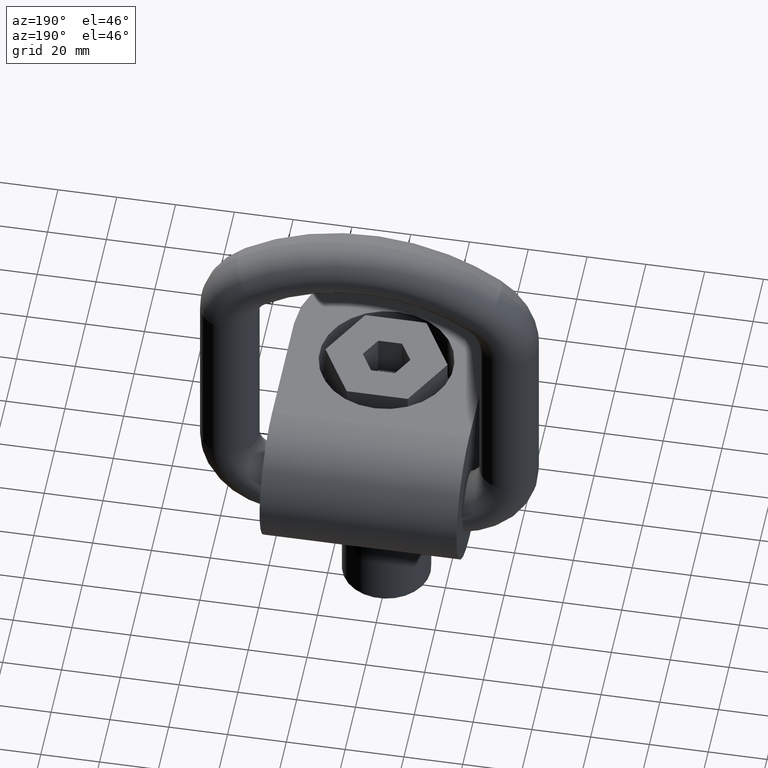
[diagram: clean part render]
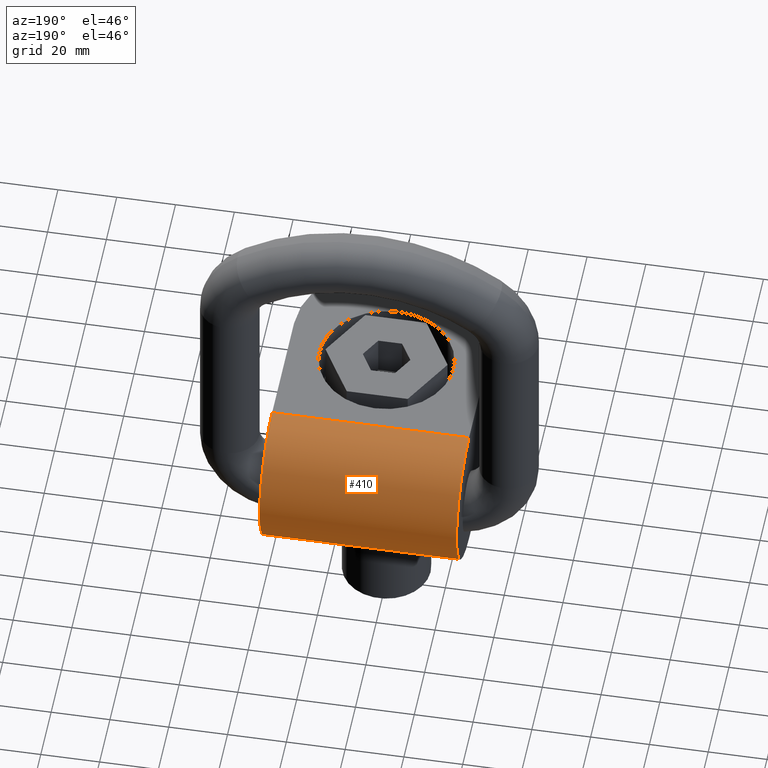
[diagram: same view with one face highlighted and labeled with its STEP entity id]
A machine part, auxiliary view. The second image highlights one B-rep face of the part: STEP entity #410.
In plain terms, the highlighted cylindrical surface (partial cylindrical patch) has radius 24.25 mm, axis along (-1, 0, 0).
Its self-contained STEP definition (entity closure, byte-faithful):
#301=FACE_OUTER_BOUND('',#639,.T.);
#410=ADVANCED_FACE('',(#301),#538,.T.);
#538=CYLINDRICAL_SURFACE('',#2495,24.25);
#639=EDGE_LOOP('',(#1221,#1222,#1223,#1224,#1225,#1226));
#796=LINE('',#3811,#926);
#799=LINE('',#3820,#929);
#802=LINE('',#3826,#932);
#804=LINE('',#3834,#934);
#926=VECTOR('',#2666,1.);
#929=VECTOR('',#2677,1.);
#932=VECTOR('',#2682,1.);
#934=VECTOR('',#2692,1.);
#1115=CIRCLE('',#2493,24.25);
#1116=CIRCLE('',#2494,24.25);
#1221=ORIENTED_EDGE('',*,*,#2054,.T.);
#1222=ORIENTED_EDGE('',*,*,#2051,.F.);
#1223=ORIENTED_EDGE('',*,*,#2055,.F.);
#1224=ORIENTED_EDGE('',*,*,#2048,.T.);
#1225=ORIENTED_EDGE('',*,*,#2056,.T.);
#1226=ORIENTED_EDGE('',*,*,#2043,.T.);
#1829=VERTEX_POINT('',#3808);
#1830=VERTEX_POINT('',#3810);
#1832=VERTEX_POINT('',#3819);
#1833=VERTEX_POINT('',#3821);
#1834=VERTEX_POINT('',#3825);
#1835=VERTEX_POINT('',#3827);
#2043=EDGE_CURVE('',#1829,#1830,#796,.T.);
#2048=EDGE_CURVE('',#1833,#1832,#799,.T.);
#2051=EDGE_CURVE('',#1834,#1835,#802,.T.);
#2054=EDGE_CURVE('',#1830,#1835,#1115,.T.);
#2055=EDGE_CURVE('',#1833,#1834,#1116,.T.);
#2056=EDGE_CURVE('',#1832,#1829,#804,.T.);
#2493=AXIS2_PLACEMENT_3D('',#3832,#2688,#2689);
#2494=AXIS2_PLACEMENT_3D('',#3833,#2690,#2691);
#2495=AXIS2_PLACEMENT_3D('',#3835,#2693,#2694);
#2666=DIRECTION('',(-1.,0.,0.));
#2677=DIRECTION('',(-1.,0.,0.));
#2682=DIRECTION('',(-1.,0.,0.));
#2688=DIRECTION('',(1.,0.,0.));
#2689=DIRECTION('',(0.,1.,0.));
#2690=DIRECTION('',(1.,0.,0.));
#2691=DIRECTION('',(0.,1.,0.));
#2692=DIRECTION('',(-1.,0.,0.));
#2693=DIRECTION('',(-1.,0.,0.));
#2694=DIRECTION('',(0.,0.,1.));
#3808=CARTESIAN_POINT('',(-13.2923850380584,30.75,3.50771789478736E-15));
#3810=CARTESIAN_POINT('',(-33.5,30.75,3.50771789478736E-15));
#3811=CARTESIAN_POINT('',(33.5,30.75,3.50771789478736E-15));
#3819=CARTESIAN_POINT('',(13.2923850380585,30.75,3.50771789478736E-15));
#3820=CARTESIAN_POINT('',(33.5,30.75,3.50771789478736E-15));
#3821=CARTESIAN_POINT('',(33.5,30.75,3.50771789478736E-15));
#3825=CARTESIAN_POINT('',(33.5,30.75,48.5));
#3826=CARTESIAN_POINT('',(33.5,30.75,48.5));
#3827=CARTESIAN_POINT('',(-33.5,30.75,48.5));
#3832=CARTESIAN_POINT('',(-33.5,30.75,24.25));
#3833=CARTESIAN_POINT('',(33.5,30.75,24.25));
#3834=CARTESIAN_POINT('',(33.5,30.75,3.50771789478736E-15));
#3835=CARTESIAN_POINT('',(33.5,30.75,24.25));